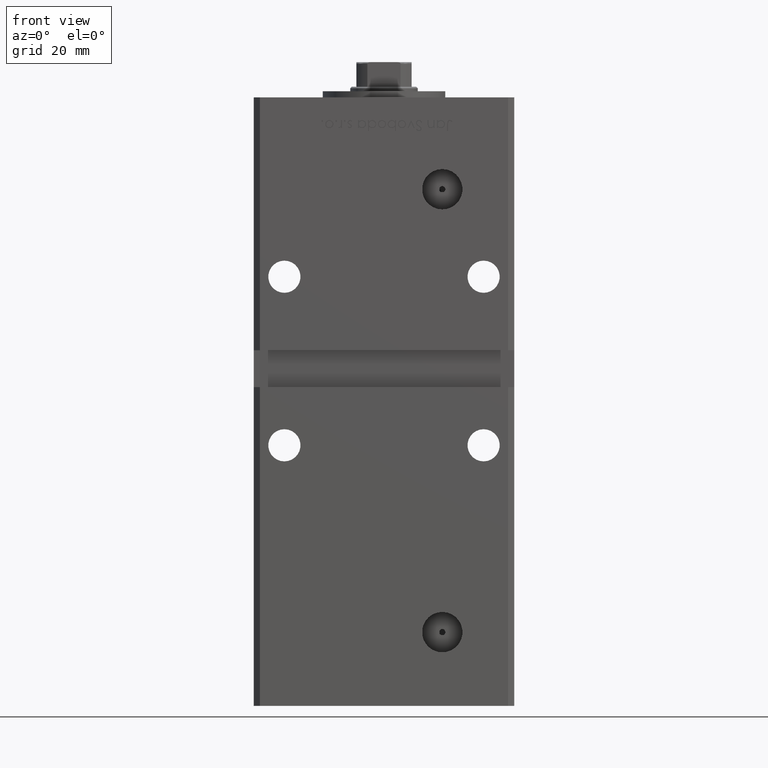
[diagram: clean part render]
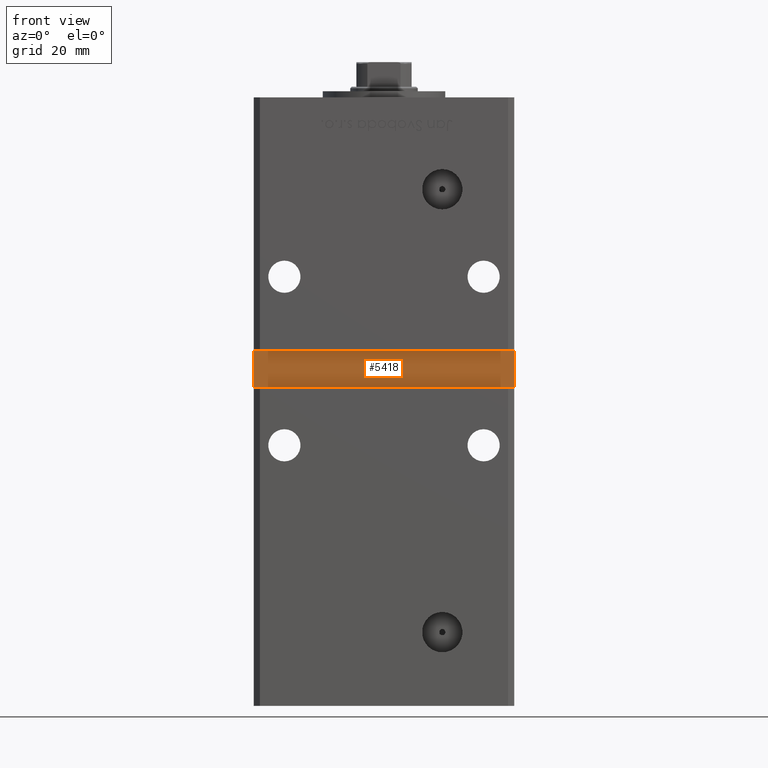
[diagram: same view with one face highlighted and labeled with its STEP entity id]
A machine part, front view. The second image highlights one B-rep face of the part: STEP entity #5418.
In plain terms, the highlighted planar face has unit normal (0, -1, 0).
Its self-contained STEP definition (entity closure, byte-faithful):
#2515 = ORIENTED_EDGE ( 'NONE', *, *, #18421, .T. ) ;
#3252 = FACE_OUTER_BOUND ( 'NONE', #24275, .T. ) ;
#3576 = DIRECTION ( 'NONE',  ( -0.000000000000000000, -0.000000000000000000, 1.000000000000000000 ) ) ;
#5418 = ADVANCED_FACE ( 'NONE', ( #3252 ), #23685, .T. ) ;
#5961 = AXIS2_PLACEMENT_3D ( 'NONE', #19676, #52468, #32008 ) ;
#6528 = VECTOR ( 'NONE', #6904, 1000.000000000000000 ) ;
#6548 = CARTESIAN_POINT ( 'NONE',  ( -42.49999999999998579, -32.50000000000000711, 101.0000000000000284 ) ) ;
#6638 = CARTESIAN_POINT ( 'NONE',  ( -42.49999999999998579, -32.50000000000000711, 89.00000000000004263 ) ) ;
#6678 = VECTOR ( 'NONE', #44975, 1000.000000000000000 ) ;
#6904 = DIRECTION ( 'NONE',  ( 1.000000000000000000, 0.000000000000000000, 0.000000000000000000 ) ) ;
#10982 = CARTESIAN_POINT ( 'NONE',  ( -42.49999999999998579, -32.50000000000000711, 89.00000000000004263 ) ) ;
#11990 = VECTOR ( 'NONE', #3576, 1000.000000000000000 ) ;
#12184 = CARTESIAN_POINT ( 'NONE',  ( -42.49999999999998579, -32.50000000000000711, 101.0000000000000284 ) ) ;
#12270 = ORIENTED_EDGE ( 'NONE', *, *, #48897, .T. ) ;
#15370 = CARTESIAN_POINT ( 'NONE',  ( 42.49999999999998579, -32.50000000000000000, 89.00000000000004263 ) ) ;
#15951 = LINE ( 'NONE', #12184, #6678 ) ;
#18421 = EDGE_CURVE ( 'NONE', #33617, #47543, #48500, .T. ) ;
#19676 = CARTESIAN_POINT ( 'NONE',  ( 0.000000000000000000, -32.50000000000000711, 0.000000000000000000 ) ) ;
#23685 = PLANE ( 'NONE',  #5961 ) ;
#23786 = CARTESIAN_POINT ( 'NONE',  ( -42.49999999999998579, -32.50000000000000711, 101.0000000000000284 ) ) ;
#24013 = DIRECTION ( 'NONE',  ( -5.782411586589358625E-16, 0.000000000000000000, -1.000000000000000000 ) ) ;
#24275 = EDGE_LOOP ( 'NONE', ( #33053, #12270, #2515, #25193 ) ) ;
#25193 = ORIENTED_EDGE ( 'NONE', *, *, #44010, .T. ) ;
#26109 = VECTOR ( 'NONE', #24013, 1000.000000000000000 ) ;
#27295 = VERTEX_POINT ( 'NONE', #43820 ) ;
#27869 = LINE ( 'NONE', #6638, #6528 ) ;
#28044 = CARTESIAN_POINT ( 'NONE',  ( 42.49999999999998579, -32.50000000000000711, 101.0000000000000284 ) ) ;
#31665 = VERTEX_POINT ( 'NONE', #15370 ) ;
#32008 = DIRECTION ( 'NONE',  ( 0.000000000000000000, -0.000000000000000000, -1.000000000000000000 ) ) ;
#33053 = ORIENTED_EDGE ( 'NONE', *, *, #52939, .T. ) ;
#33617 = VERTEX_POINT ( 'NONE', #23786 ) ;
#43820 = CARTESIAN_POINT ( 'NONE',  ( 42.49999999999998579, -32.50000000000000711, 101.0000000000000284 ) ) ;
#44010 = EDGE_CURVE ( 'NONE', #47543, #31665, #27869, .T. ) ;
#44975 = DIRECTION ( 'NONE',  ( -1.000000000000000000, -0.000000000000000000, -0.000000000000000000 ) ) ;
#47543 = VERTEX_POINT ( 'NONE', #10982 ) ;
#48498 = LINE ( 'NONE', #28044, #11990 ) ;
#48500 = LINE ( 'NONE', #6548, #26109 ) ;
#48897 = EDGE_CURVE ( 'NONE', #27295, #33617, #15951, .T. ) ;
#52468 = DIRECTION ( 'NONE',  ( 0.000000000000000000, -1.000000000000000000, 0.000000000000000000 ) ) ;
#52939 = EDGE_CURVE ( 'NONE', #31665, #27295, #48498, .T. ) ;